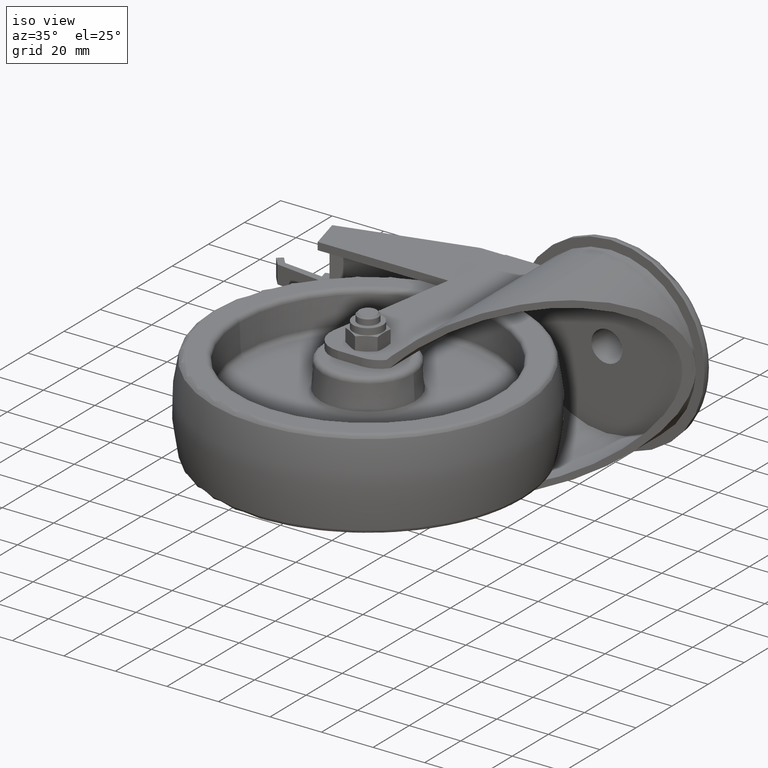
[diagram: clean part render]
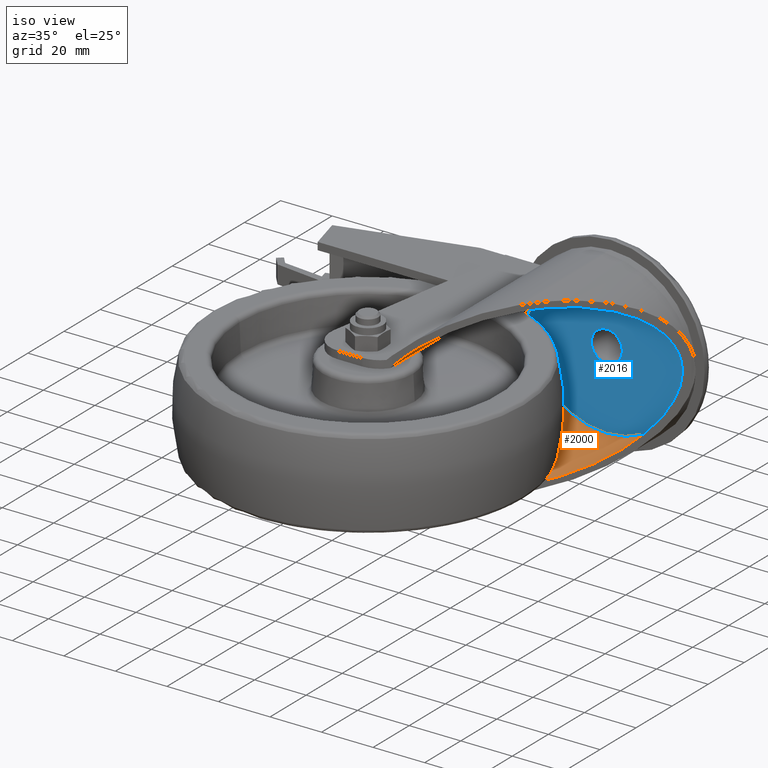
[diagram: same view with the hole feature highlighted: cylindrical wall and planar end face, labeled with their STEP entity ids]
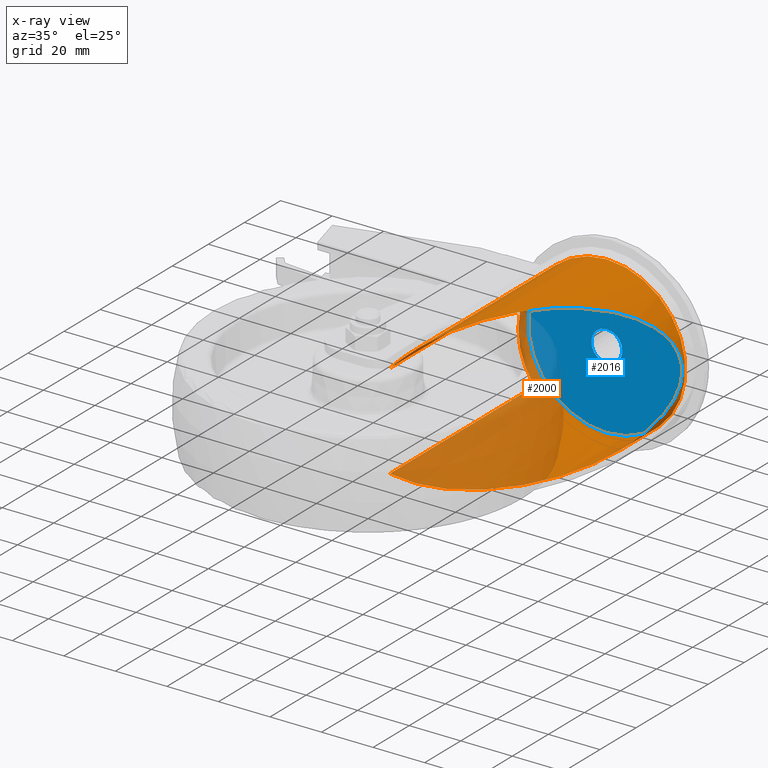
[diagram: x-ray of the same camera — body ghosted, the hole faces saturated]
A machine part, iso view. The highlighted faces form one hole feature of diameter 61 mm: the cylindrical wall (entity #2000, orange) and its adjacent planar end face (entity #2016, blue) — they share a circular edge in the B-rep.
The next image is the same camera in x-ray (body ghosted, the hole faces saturated) — the bore reads through the body.
Wall:
#149=B_SPLINE_CURVE_WITH_KNOTS('',3,(#3203,#3204,#3205,#3206,#3207,#3208,
#3209),.UNSPECIFIED.,.F.,.F.,(4,3,4),(3.39512376483279E-17,0.000497924219683905,
0.00069095285595071),.UNSPECIFIED.);
#152=B_SPLINE_CURVE_WITH_KNOTS('',3,(#3236,#3237,#3238,#3239,#3240,#3241,
#3242),.UNSPECIFIED.,.F.,.F.,(4,3,4),(0.0418615516057193,0.0423792059004264,
0.042552800239739),.UNSPECIFIED.);
#252=FACE_OUTER_BOUND('',#383,.T.);
#383=EDGE_LOOP('',(#1455,#1456,#1457,#1458,#1459,#1460,#1461,#1462,#1463,
#1464));
#517=CIRCLE('',#2243,30.5);
#528=CIRCLE('',#2263,30.5);
#623=ELLIPSE('',#2264,55.7792992640996,30.5);
#624=ELLIPSE('',#2265,55.7792992640996,30.5);
#656=LINE('',#3178,#789);
#659=LINE('',#3193,#792);
#671=LINE('',#3259,#804);
#789=VECTOR('',#2533,1000.);
#792=VECTOR('',#2548,1000.);
#804=VECTOR('',#2586,30.5);
#914=VERTEX_POINT('',#3159);
#917=VERTEX_POINT('',#3164);
#922=VERTEX_POINT('',#3177);
#928=VERTEX_POINT('',#3191);
#932=VERTEX_POINT('',#3202);
#939=VERTEX_POINT('',#3234);
#942=VERTEX_POINT('',#3256);
#943=VERTEX_POINT('',#3258);
#1104=EDGE_CURVE('',#914,#917,#517,.T.);
#1110=EDGE_CURVE('',#922,#914,#656,.F.);
#1118=EDGE_CURVE('',#917,#928,#659,.T.);
#1123=EDGE_CURVE('',#932,#922,#149,.T.);
#1132=EDGE_CURVE('',#928,#939,#152,.T.);
#1139=EDGE_CURVE('',#942,#942,#528,.T.);
#1140=EDGE_CURVE('',#942,#943,#671,.T.);
#1141=EDGE_CURVE('',#932,#943,#623,.F.);
#1142=EDGE_CURVE('',#943,#939,#624,.F.);
#1455=ORIENTED_EDGE('',*,*,#1139,.F.);
#1456=ORIENTED_EDGE('',*,*,#1140,.T.);
#1457=ORIENTED_EDGE('',*,*,#1141,.F.);
#1458=ORIENTED_EDGE('',*,*,#1123,.T.);
#1459=ORIENTED_EDGE('',*,*,#1110,.T.);
#1460=ORIENTED_EDGE('',*,*,#1104,.T.);
#1461=ORIENTED_EDGE('',*,*,#1118,.T.);
#1462=ORIENTED_EDGE('',*,*,#1132,.T.);
#1463=ORIENTED_EDGE('',*,*,#1142,.F.);
#1464=ORIENTED_EDGE('',*,*,#1140,.F.);
#1971=CYLINDRICAL_SURFACE('',#2262,30.5);
#2000=ADVANCED_FACE('',(#252),#1971,.F.);
#2243=AXIS2_PLACEMENT_3D('',#3166,#2524,#2525);
#2262=AXIS2_PLACEMENT_3D('',#3255,#2582,#2583);
#2263=AXIS2_PLACEMENT_3D('',#3257,#2584,#2585);
#2264=AXIS2_PLACEMENT_3D('',#3260,#2587,#2588);
#2265=AXIS2_PLACEMENT_3D('',#3261,#2589,#2590);
#2524=DIRECTION('center_axis',(0.,-1.,0.));
#2525=DIRECTION('ref_axis',(0.,0.,-1.));
#2533=DIRECTION('',(0.,-1.,0.));
#2548=DIRECTION('',(0.,-1.,0.));
#2582=DIRECTION('center_axis',(0.,-1.,0.));
#2583=DIRECTION('ref_axis',(0.,0.,-1.));
#2584=DIRECTION('center_axis',(0.,-1.,0.));
#2585=DIRECTION('ref_axis',(0.,0.,-1.));
#2586=DIRECTION('',(0.,-1.,0.));
#2587=DIRECTION('center_axis',(0.83726467088855,-0.546797833647764,0.));
#2588=DIRECTION('ref_axis',(-0.546797833647764,-0.83726467088855,0.));
#2589=DIRECTION('center_axis',(0.83726467088855,-0.546797833647764,0.));
#2590=DIRECTION('ref_axis',(-0.546797833647764,-0.83726467088855,0.));
#3159=CARTESIAN_POINT('',(12.7512886940357,74.,18.5));
#3164=CARTESIAN_POINT('',(12.7512886940357,74.,-18.5));
#3166=CARTESIAN_POINT('Origin',(37.,74.,0.));
#3177=CARTESIAN_POINT('',(12.7512886940357,-5.93099910346417,18.5));
#3178=CARTESIAN_POINT('',(12.7512886940357,-10.,18.5));
#3191=CARTESIAN_POINT('',(12.7512886940357,-5.93099910346417,-18.5));
#3193=CARTESIAN_POINT('',(12.7512886940357,-10.,-18.5));
#3202=CARTESIAN_POINT('',(13.0726467088855,-5.46797833647764,18.9137982563575));
#3203=CARTESIAN_POINT('Ctrl Pts',(13.0726467088855,-5.46797833647764,18.9137982563575));
#3204=CARTESIAN_POINT('Ctrl Pts',(12.9966415001639,-5.58435860016955,18.8176460474571));
#3205=CARTESIAN_POINT('Ctrl Pts',(12.9196914982063,-5.69689243829166,18.7191108666418));
#3206=CARTESIAN_POINT('Ctrl Pts',(12.8419888229573,-5.80586066030165,18.6182860796605));
#3207=CARTESIAN_POINT('Ctrl Pts',(12.8118660837037,-5.84810401071421,18.579199667786));
#3208=CARTESIAN_POINT('Ctrl Pts',(12.781629666646,-5.88981145101609,18.5397691613821));
#3209=CARTESIAN_POINT('Ctrl Pts',(12.7512886940357,-5.93099910346417,18.5));
#3234=CARTESIAN_POINT('',(13.0726467088855,-5.46797833647763,-18.9137982563575));
#3236=CARTESIAN_POINT('Ctrl Pts',(12.7512886940357,-5.93099910346417,-18.5));
#3237=CARTESIAN_POINT('Ctrl Pts',(12.8327876692881,-5.82036482978139,-18.6068240606825));
#3238=CARTESIAN_POINT('Ctrl Pts',(12.9134148387263,-5.70614470970361,-18.7110447425603));
#3239=CARTESIAN_POINT('Ctrl Pts',(12.9929752662233,-5.58807312352023,-18.8125709306344));
#3240=CARTESIAN_POINT('Ctrl Pts',(13.0196556975227,-5.54847805166499,-18.8466175361042));
#3241=CARTESIAN_POINT('Ctrl Pts',(13.0462157376378,-5.50844981804031,-18.8803611234083));
#3242=CARTESIAN_POINT('Ctrl Pts',(13.0726467088855,-5.46797833647764,-18.9137982563575));
#3255=CARTESIAN_POINT('Origin',(37.,-10.,0.));
#3256=CARTESIAN_POINT('',(37.,79.5,30.5));
#3257=CARTESIAN_POINT('Origin',(37.,79.5,0.));
#3258=CARTESIAN_POINT('',(37.,31.1699275690242,30.5));
#3259=CARTESIAN_POINT('',(37.,-10.,30.5));
#3260=CARTESIAN_POINT('Origin',(37.,31.1699275690242,0.));
#3261=CARTESIAN_POINT('Origin',(37.,31.1699275690242,0.));
End face:
#161=FACE_BOUND('',#406,.T.);
#191=PLANE('',#2298);
#268=FACE_OUTER_BOUND('',#405,.T.);
#405=EDGE_LOOP('',(#1538));
#406=EDGE_LOOP('',(#1539));
#528=CIRCLE('',#2263,30.5);
#544=CIRCLE('',#2299,6.00000000000001);
#942=VERTEX_POINT('',#3256);
#961=VERTEX_POINT('',#3325);
#1139=EDGE_CURVE('',#942,#942,#528,.T.);
#1173=EDGE_CURVE('',#961,#961,#544,.F.);
#1538=ORIENTED_EDGE('',*,*,#1139,.T.);
#1539=ORIENTED_EDGE('',*,*,#1173,.T.);
#2016=ADVANCED_FACE('',(#268,#161),#191,.T.);
#2263=AXIS2_PLACEMENT_3D('',#3257,#2584,#2585);
#2298=AXIS2_PLACEMENT_3D('',#3324,#2668,#2669);
#2299=AXIS2_PLACEMENT_3D('',#3326,#2670,#2671);
#2584=DIRECTION('center_axis',(0.,-1.,0.));
#2585=DIRECTION('ref_axis',(0.,0.,-1.));
#2668=DIRECTION('center_axis',(0.,-1.,0.));
#2669=DIRECTION('ref_axis',(0.,0.,-1.));
#2670=DIRECTION('center_axis',(0.,-1.,0.));
#2671=DIRECTION('ref_axis',(0.,0.,-1.));
#3256=CARTESIAN_POINT('',(37.,79.5,30.5));
#3257=CARTESIAN_POINT('Origin',(37.,79.5,0.));
#3324=CARTESIAN_POINT('Origin',(37.,79.5,0.));
#3325=CARTESIAN_POINT('',(37.,79.5,6.00000000000001));
#3326=CARTESIAN_POINT('Origin',(37.,79.5,0.));